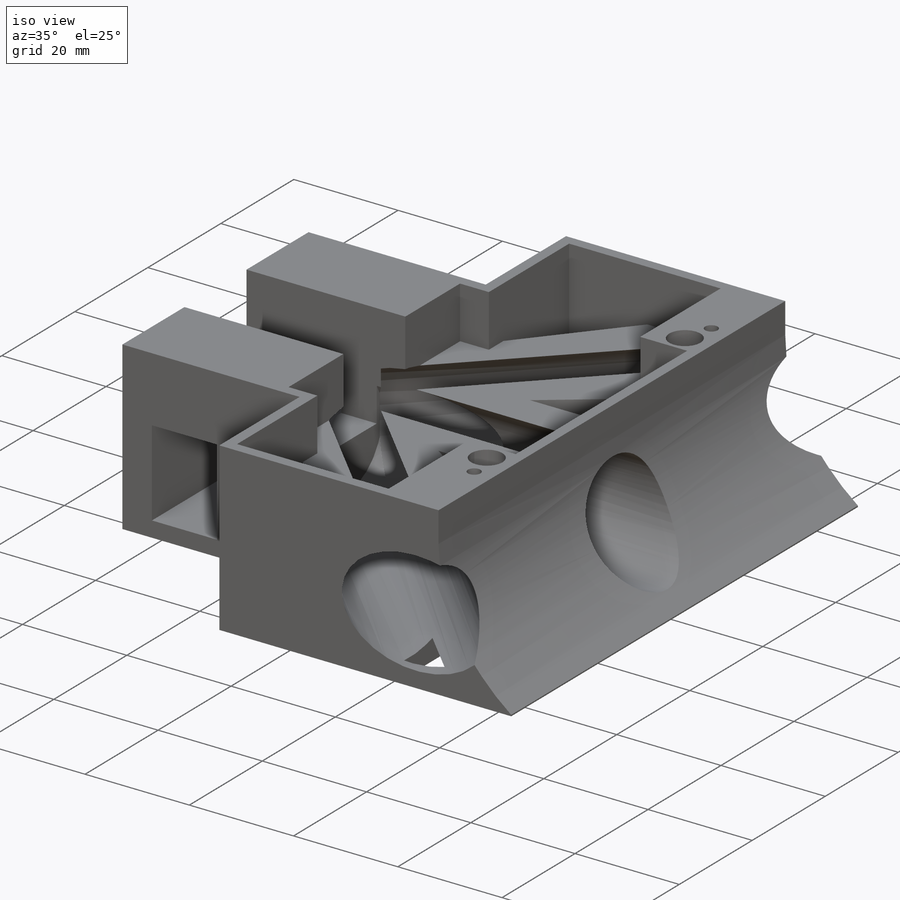
[diagram: iso view]
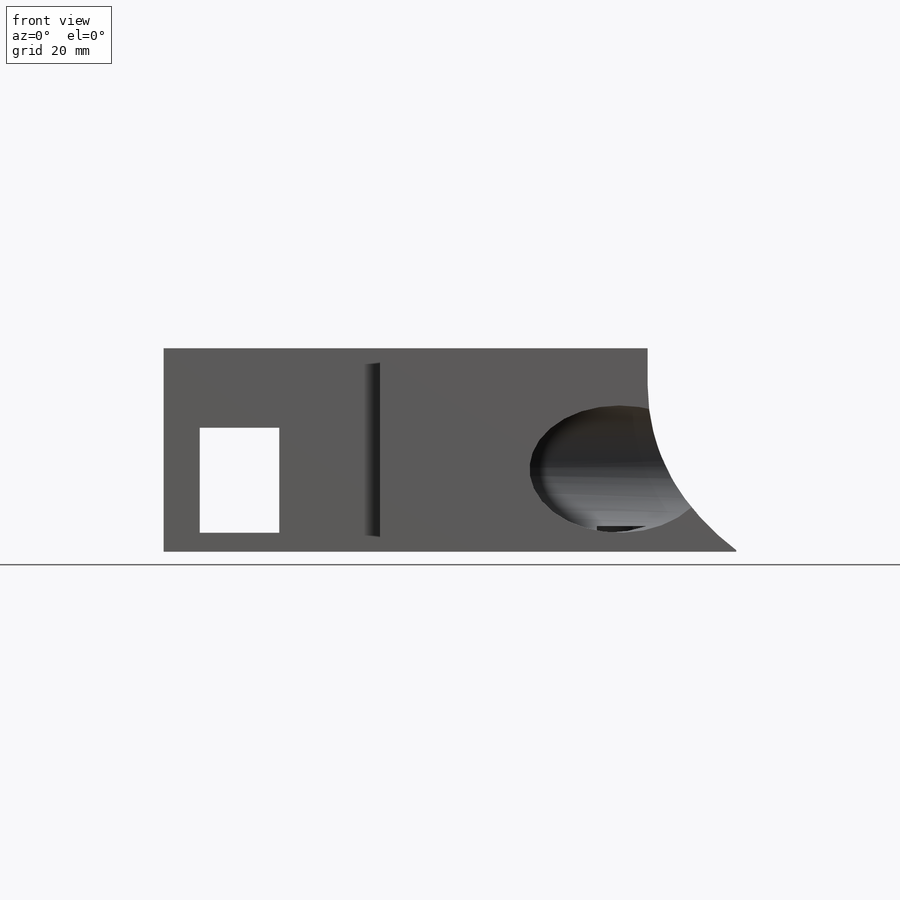
[diagram: front view]
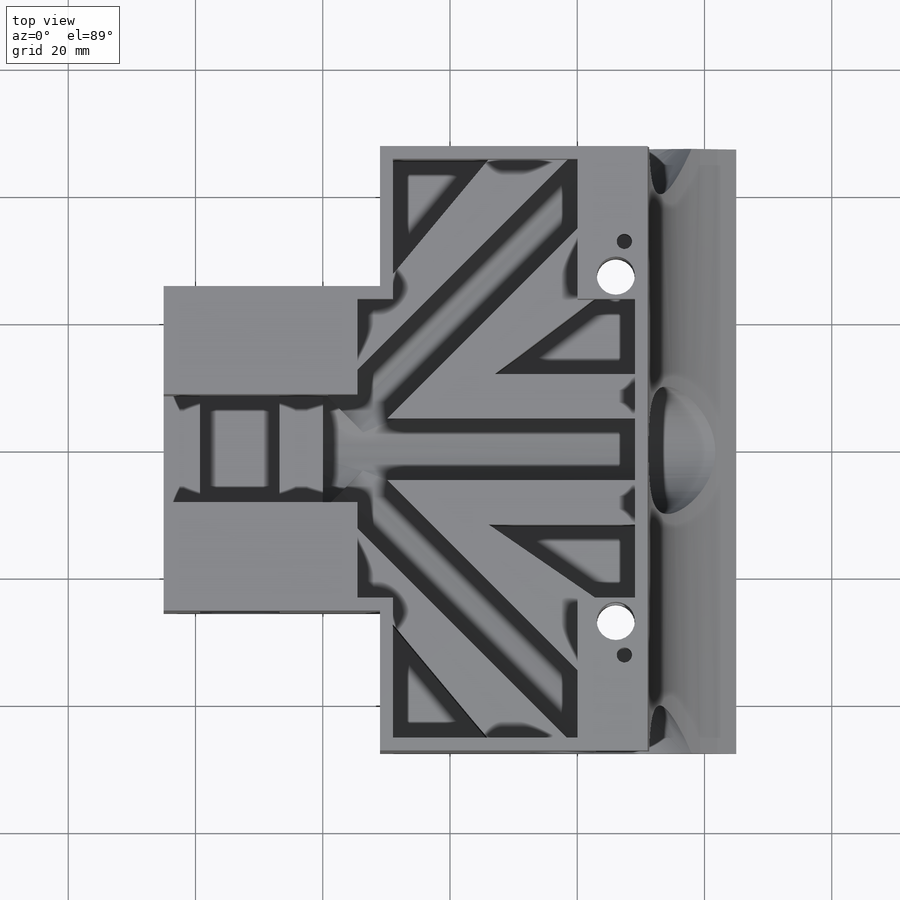
[diagram: top view]
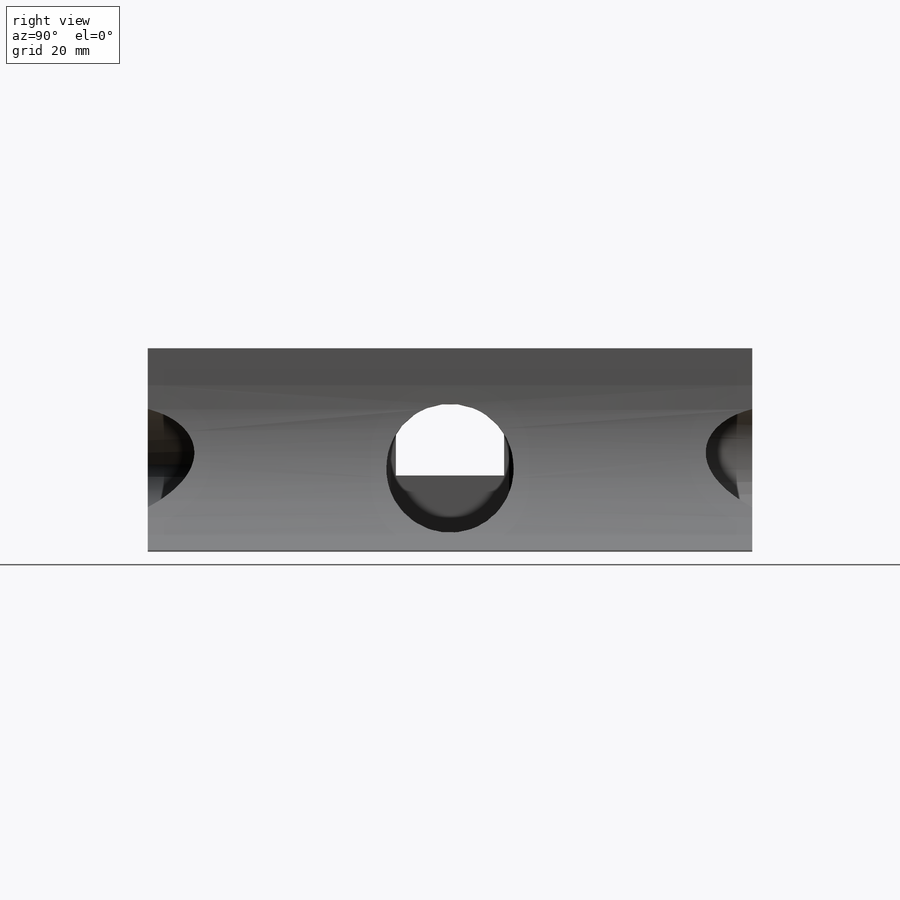
[diagram: right view]
SOLIDWORKS PART (.sldprt)
format: sldprt  version: not decoded by parser v0  size: 1,148,416 bytes
history: native  units: mm
features: sketch x60, cut_extrude x48, extrude x12, fillet x2, material x1 (+12 scaffold rows collapsed)
feature tree (135):
  scaffold x12  (default folders/planes/origin — collapsed)
  material  "Material <not specified>"
  sketch  "Sketch1"  dims[D1=95.0mm D2=90.0mm]
  extrude  "Boss-Extrude1"  Depth=20mm
  sketch  "Sketch2"  dims[D1=13.0mm D2=47.5mm]
  cut_extrude  "Cut-Extrude2"  Depth=70mm
  sketch  "Sketch3"
  cut_extrude  "Cut-Extrude3"  Depth=100mm
  sketch  "Sketch5"  dims[D1=12.0mm D2=3.0mm D3=16.0mm]
  cut_extrude  "Cut-Extrude5"  Depth=100mm
  fillet  "Fillet2"  Radius=10mm
  sketch  "Sketch6"  dims[D1=24.0mm]
  extrude  "Boss-Extrude2"  Depth=24mm
  sketch  "Sketch7"  dims[D1=2.0mm D2=4.36mm D3=2.0mm D4=2.0mm D5=~33.998572mm]
  cut_extrude  "Cut-Extrude7"  Depth=17mm
  sketch  "Sketch8"  dims[D1=2.0mm D2=34.0mm D3=2.0mm D4=2.0mm]
  cut_extrude  "Cut-Extrude8"  Depth=17mm
  sketch  "Sketch10"
  extrude  "Boss-Extrude3"  Depth=25mm
  sketch  "Sketch12"  dims[D1=32.0mm D2=22.0mm]
  cut_extrude  "Cut-Extrude9"  Depth=34mm
  sketch  "Sketch13"  dims[D1=22.0mm D2=32.0mm]
  cut_extrude  "Cut-Extrude10"  Depth=34mm
  sketch  "Sketch14"  dims[D1=12.0mm]
  cut_extrude  "Cut-Extrude11"  Depth=100mm
  sketch  "Sketch18"  dims[D1=6.0mm]
  cut_extrude  "Cut-Extrude13"  Depth=100mm
  sketch  "Sketch19"  dims[D1=0.0mm]
  extrude  "Boss-Extrude5"  Depth=60mm
  sketch  "Sketch20"
  extrude  "Boss-Extrude6"  Depth=95mm
  sketch  "Sketch21"
  cut_extrude  "Cut-Extrude16"  Depth=17mm
  sketch  "Sketch23"
  cut_extrude  "Cut-Extrude17"  Depth=100mm
  sketch  "Sketch29"
  cut_extrude  "Cut-Extrude22"  Depth=100mm
  sketch  "Sketch30"
  cut_extrude  "Cut-Extrude23"  Depth=100mm
  sketch  "Sketch31"
  cut_extrude  "Cut-Extrude24"  Depth=17mm
  sketch  "Sketch33"
  extrude  "Boss-Extrude7"  Depth=17mm
  sketch  "Sketch34"
  extrude  "Boss-Extrude8"  Depth=17mm
  sketch  "Sketch35"  dims[D1=17.0mm D2=17.0mm]
  extrude  "Boss-Extrude10"  Depth=20mm
  sketch  "Sketch36"  dims[D1=17.0mm D2=17.0mm]
  extrude  "Boss-Extrude13"  Depth=20mm
  sketch  "Sketch43"  dims[D1=13.0mm D2=25.0mm]
  cut_extrude  "Cut-Extrude35"  Depth=85mm
  sketch  "Sketch44"  dims[D1=13.0mm D2=25.0mm]
  cut_extrude  "Cut-Extrude36"  Depth=85mm
  sketch  "Sketch45"
  cut_extrude  "Cut-Extrude37"  Depth=85mm
  sketch  "Sketch46"
  cut_extrude  "Cut-Extrude38"  Depth=85mm
  sketch  "Sketch48"  dims[D1=13.0mm D2=47.5mm]
  cut_extrude  "Cut-Extrude40"  Depth=65mm
  sketch  "Sketch49"
  cut_extrude  "Cut-Extrude41"  Depth=100mm
  sketch  "Sketch50"  dims[D1=17.0mm D2=10.0mm D3=2.0mm D4=7.0mm]
  cut_extrude  "Cut-Extrude43"  Depth=4mm
  sketch  "Sketch51"  dims[D1=17.0mm D2=10.0mm D3=7.0mm D4=2.0mm]
  cut_extrude  "Cut-Extrude44"  Depth=4mm
  sketch  "Sketch52"  dims[D1=20.0mm D2=5.0mm]
  cut_extrude  "Cut-Extrude45"  Depth=100mm
  sketch  "Sketch53"  dims[D1=20.0mm D2=5.0mm]
  cut_extrude  "Cut-Extrude46"  Depth=100mm
  sketch  "Sketch55"  dims[D1=2.0mm]
  cut_extrude  "Cut-Extrude50"  Depth=4mm
  sketch  "Sketch56"  dims[D1=9.0mm]
  cut_extrude  "Cut-Extrude51"  Depth=4mm
  sketch  "Sketch57"  dims[D1=2.0mm]
  cut_extrude  "Cut-Extrude52"  Depth=4mm
  sketch  "Sketch58"  dims[D1=9.0mm]
  cut_extrude  "Cut-Extrude53"  Depth=4mm
  sketch  "Sketch59"
  cut_extrude  "Cut-Extrude54"  Depth=4mm
  sketch  "Sketch60"
  cut_extrude  "Cut-Extrude55"  Depth=4mm
  sketch  "Sketch61"
  extrude  "Boss-Extrude14"  Depth=12mm
  sketch  "Sketch62"
  extrude  "Boss-Extrude15"  Depth=12mm
  sketch  "Sketch63"
  extrude  "Boss-Extrude16"  Depth=12mm
  sketch  "Sketch64"  dims[D1=13.0mm D2=47.5mm]
  cut_extrude  "Cut-Extrude56"  Depth=100mm
  sketch  "Sketch65"  dims[D2=~7.749712mm D1=0.0mm]
  cut_extrude  "Cut-Extrude57"  Depth=100mm
  sketch  "Sketch66"  dims[D2=~8.140608mm D1=0.0mm]
  cut_extrude  "Cut-Extrude58"  Depth=100mm
  sketch  "Sketch69"  dims[D1=0.0mm]
  cut_extrude  "Cut-Extrude60"  Depth=100mm
  sketch  "Sketch70"  dims[D2=6.0mm D1=0.0mm]
  cut_extrude  "Cut-Extrude61"  Depth=100mm
  sketch  "Sketch71"  dims[D1=2.0mm D2=2.0mm D3=2.0mm]
  cut_extrude  "Cut-Extrude62"  Depth=4mm
  sketch  "Sketch72"
  cut_extrude  "Cut-Extrude63"  Depth=6mm
  sketch  "Sketch73"  dims[D1=17.0mm D2=17.0mm D3=17.0mm]
  cut_extrude  "Cut-Extrude65"  Depth=20mm
  sketch  "Sketch74"  dims[D1=7.0mm D2=7.0mm]
  cut_extrude  "Cut-Extrude66"  Depth=17mm
  sketch  "Sketch75"  dims[D1=7.0mm D2=7.0mm]
  cut_extrude  "Cut-Extrude67"  Depth=17mm
  fillet  "Fillet7"  Radius=30mm
  sketch  "Sketch76"  dims[c1.D1=~3.426432mm c1.D4=1.666mm c2.D1=65.0mm c2.D2=15.0mm c2.D3=3.666mm c2.D4=~7.20548mm]
  cut_extrude  "Cut-Extrude68"  Depth=10mm
  sketch  "Sketch77"  dims[D1=3.0mm D2=6.0mm]
  cut_extrude  "Cut-Extrude71"  Depth=6mm
  sketch  "Sketch78"  dims[D1=6.0mm D2=3.0mm]
  cut_extrude  "Cut-Extrude72"  Depth=6mm
  sketch  "Sketch79"  dims[c1.D1=2.0mm c1.D2=2.0mm c2.D1=4.0mm c2.D2=2.0mm c2.D3=2.0mm c2.D4=15.0mm]
  cut_extrude  "Cut-Extrude74"  Depth=27mm
  sketch  "Sketch80"  dims[D1=4.0mm D2=2.0mm D3=2.0mm D4=15.0mm]
  cut_extrude  "Cut-Extrude75"  Depth=27mm
  sketch  "Sketch81"  dims[D1=6.0mm]
  cut_extrude  "Cut-Extrude76"  Depth=10mm
  sketch  "Sketch82"  dims[D1=6.0mm]
  cut_extrude  "Cut-Extrude77"  Depth=10mm
  sketch  "Sketch83"  dims[D1=12.5mm D2=16.5mm]
  cut_extrude  "Cut-Extrude79"  Depth=100mm
decode coverage: 103 of 122 modeling features carry decoded parameters
note: ~ marks probable driven/reference dimensions
note: suppression state not decoded; provenance and decode notes live in map.json
